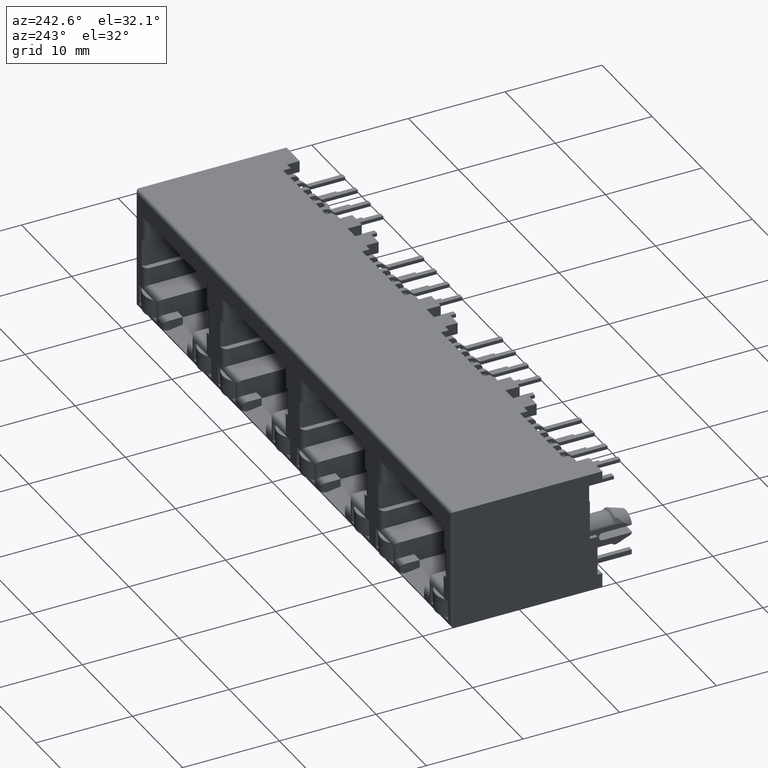
[diagram: clean part render]
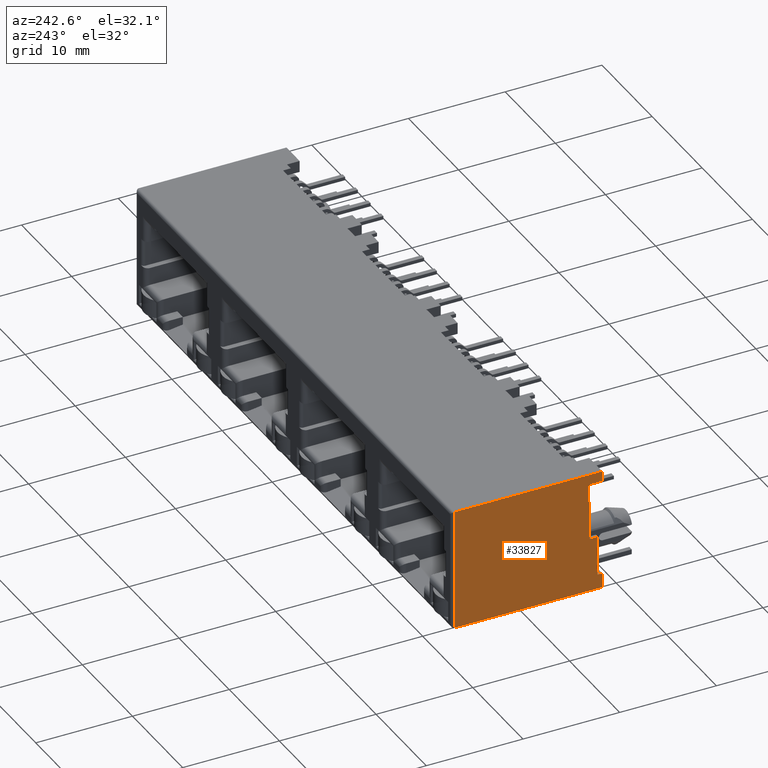
[diagram: same view with one face highlighted and labeled with its STEP entity id]
A machine part, auxiliary view. The second image highlights one B-rep face of the part: STEP entity #33827.
In plain terms, the highlighted planar face has unit normal (1, 0, 0).
Its self-contained STEP definition (entity closure, byte-faithful):
#33 = CARTESIAN_POINT ( 'NONE',  ( -31.50000000000000000, -2.700000000000001100, 6.300000000000000700 ) ) ;
#174 = CARTESIAN_POINT ( 'NONE',  ( -31.50000000000000000, -6.500000000000000900, -0.6500000000000000200 ) ) ;
#345 = CARTESIAN_POINT ( 'NONE',  ( -31.50000000000000000, -6.833333333333332100, 5.250000000000000000 ) ) ;
#797 = EDGE_CURVE ( 'NONE', #58443, #29136, #52097, .T. ) ;
#1118 = FACE_OUTER_BOUND ( 'NONE', #21489, .T. ) ;
#1771 = CARTESIAN_POINT ( 'NONE',  ( -31.50000000000000000, 7.500000000000000000, -6.250000000000000000 ) ) ;
#2914 = ORIENTED_EDGE ( 'NONE', *, *, #3310, .F. ) ;
#2993 = EDGE_CURVE ( 'NONE', #23417, #31411, #35553, .T. ) ;
#3065 = CARTESIAN_POINT ( 'NONE',  ( -31.50000000000000000, -7.800000000000000700, -4.750000000000000900 ) ) ;
#3310 = EDGE_CURVE ( 'NONE', #15365, #57287, #7318, .T. ) ;
#3698 = B_SPLINE_CURVE_WITH_KNOTS ( 'NONE', 3,
 ( #59480, #33, #48864, #10945 ),
 .UNSPECIFIED., .F., .F.,
 ( 4, 4 ),
 ( 0.0000000000000000000, 1.000000000000000000 ),
 .UNSPECIFIED. ) ;
#3701 = EDGE_CURVE ( 'NONE', #61648, #25019, #8610, .T. ) ;
#5444 = CARTESIAN_POINT ( 'NONE',  ( -31.50000000000000000, -6.349999999999997900, 3.450000000000000200 ) ) ;
#5821 = CARTESIAN_POINT ( 'NONE',  ( -31.50000000000000000, -7.299999999999999800, -3.383333333333333700 ) ) ;
#5834 = CARTESIAN_POINT ( 'NONE',  ( -31.50000000000000000, -7.800000000000000700, 5.249999999999999100 ) ) ;
#6343 = CARTESIAN_POINT ( 'NONE',  ( -31.50000000000000000, -7.300000000000000700, -4.750000000000000000 ) ) ;
#6579 = CARTESIAN_POINT ( 'NONE',  ( -31.50000000000000000, -7.466666666666667700, -4.750000000000000000 ) ) ;
#6664 = ORIENTED_EDGE ( 'NONE', *, *, #3701, .F. ) ;
#6710 = CARTESIAN_POINT ( 'NONE',  ( -31.50000000000000000, 7.500000000000000000, -6.250000000000000000 ) ) ;
#6968 = CARTESIAN_POINT ( 'NONE',  ( -31.50000000000000000, -6.500000000000000900, 0.7166666666666662300 ) ) ;
#7260 = CARTESIAN_POINT ( 'NONE',  ( -31.50000000000000000, -7.300000000000000700, -4.750000000000000000 ) ) ;
#7318 = B_SPLINE_CURVE_WITH_KNOTS ( 'NONE', 3,
 ( #46475, #18526, #24644, #7842 ),
 .UNSPECIFIED., .F., .F.,
 ( 4, 4 ),
 ( 0.0000000000000000000, 1.000000000000000000 ),
 .UNSPECIFIED. ) ;
#7842 = CARTESIAN_POINT ( 'NONE',  ( -31.50000000000000000, -7.800000000000000700, 5.249999999999999100 ) ) ;
#7888 = ORIENTED_EDGE ( 'NONE', *, *, #63779, .F. ) ;
#8610 = B_SPLINE_CURVE_WITH_KNOTS ( 'NONE', 3,
 ( #174, #33529, #65611, #39016 ),
 .UNSPECIFIED., .F., .F.,
 ( 4, 4 ),
 ( 0.0000000000000000000, 1.000000000000000000 ),
 .UNSPECIFIED. ) ;
#10196 = EDGE_CURVE ( 'NONE', #31411, #60348, #57545, .T. ) ;
#10679 = EDGE_CURVE ( 'NONE', #57287, #41306, #63169, .T. ) ;
#10816 = CARTESIAN_POINT ( 'NONE',  ( -31.50000000000000000, -6.500000000000000900, 3.450000000000000200 ) ) ;
#10899 = CARTESIAN_POINT ( 'NONE',  ( -31.50000000000000000, -6.500000000000000900, 3.450000000000000200 ) ) ;
#10945 = CARTESIAN_POINT ( 'NONE',  ( -31.50000000000000000, 7.500000000000000000, 6.299999999999999800 ) ) ;
#11655 = ORIENTED_EDGE ( 'NONE', *, *, #10196, .F. ) ;
#11728 = CARTESIAN_POINT ( 'NONE',  ( -31.50000000000000000, -6.500000000000000900, 2.083333333333333000 ) ) ;
#12059 = CARTESIAN_POINT ( 'NONE',  ( -31.50000000000000000, -7.800000000000000700, -6.250000000000000000 ) ) ;
#12462 = CARTESIAN_POINT ( 'NONE',  ( -31.50000000000000000, 2.399999999999999500, -6.250000000000000000 ) ) ;
#12713 = CARTESIAN_POINT ( 'NONE',  ( -31.50000000000000000, 7.806000000000000000, -6.501000000000000300 ) ) ;
#12876 = CARTESIAN_POINT ( 'NONE',  ( -31.50000000000000000, 7.499999999999996400, -2.066666666666667300 ) ) ;
#13076 = ORIENTED_EDGE ( 'NONE', *, *, #66063, .F. ) ;
#15365 = VERTEX_POINT ( 'NONE', #31063 ) ;
#15381 = ORIENTED_EDGE ( 'NONE', *, *, #36255, .F. ) ;
#16814 = CARTESIAN_POINT ( 'NONE',  ( -31.50000000000000000, -6.349999999999997900, 3.450000000000000200 ) ) ;
#17420 = CARTESIAN_POINT ( 'NONE',  ( -31.50000000000000000, -6.349999999999997900, 5.249999999999999100 ) ) ;
#17655 = CARTESIAN_POINT ( 'NONE',  ( -31.50000000000000000, -6.500000000000000900, -0.6500000000000000200 ) ) ;
#17813 = ORIENTED_EDGE ( 'NONE', *, *, #46612, .F. ) ;
#18526 = CARTESIAN_POINT ( 'NONE',  ( -31.50000000000000000, -7.799999999999999800, 5.949999999999997500 ) ) ;
#19265 = ORIENTED_EDGE ( 'NONE', *, *, #64412, .T. ) ;
#21489 = EDGE_LOOP ( 'NONE', ( #11655, #61180, #17813, #6664, #15381, #7888, #13076, #58623, #2914, #19265, #63811, #37462 ) ) ;
#21609 = VERTEX_POINT ( 'NONE', #37223 ) ;
#21870 = CARTESIAN_POINT ( 'NONE',  ( -31.50000000000000000, -7.300000000000000700, -4.750000000000000000 ) ) ;
#22567 = CARTESIAN_POINT ( 'NONE',  ( -31.50000000000000000, -7.300000000000000700, -0.6500000000000000200 ) ) ;
#22814 = CARTESIAN_POINT ( 'NONE',  ( -31.50000000000000000, -7.316666666666666400, 5.250000000000000000 ) ) ;
#23417 = VERTEX_POINT ( 'NONE', #7260 ) ;
#24644 = CARTESIAN_POINT ( 'NONE',  ( -31.50000000000000000, -7.799999999999999800, 5.599999999999997900 ) ) ;
#24834 = VERTEX_POINT ( 'NONE', #10816 ) ;
#25019 = VERTEX_POINT ( 'NONE', #61985 ) ;
#25809 = CARTESIAN_POINT ( 'NONE',  ( -31.50000000000000000, 7.500000000000000000, -6.250000000000000000 ) ) ;
#27801 = CARTESIAN_POINT ( 'NONE',  ( -31.50000000000000000, -7.299999999999999800, -2.016666666666667100 ) ) ;
#29136 = VERTEX_POINT ( 'NONE', #25809 ) ;
#30524 = CARTESIAN_POINT ( 'NONE',  ( -31.50000000000000000, -7.799999999999999800, -5.750000000000000000 ) ) ;
#31063 = CARTESIAN_POINT ( 'NONE',  ( -31.50000000000000000, -7.800000000000000700, 6.299999999999999800 ) ) ;
#31411 = VERTEX_POINT ( 'NONE', #3065 ) ;
#31687 = CARTESIAN_POINT ( 'NONE',  ( -31.50000000000000000, -6.450000000000000200, 3.449999999999999700 ) ) ;
#33529 = CARTESIAN_POINT ( 'NONE',  ( -31.50000000000000000, -6.766666666666667500, -0.6500000000000001300 ) ) ;
#33827 = ADVANCED_FACE ( 'NONE', ( #1118 ), #39449, .F. ) ;
#33942 = CARTESIAN_POINT ( 'NONE',  ( -31.50000000000000000, -7.800000000000000700, -6.250000000000000000 ) ) ;
#35553 = B_SPLINE_CURVE_WITH_KNOTS ( 'NONE', 3,
 ( #6343, #6579, #44733, #39255 ),
 .UNSPECIFIED., .F., .F.,
 ( 4, 4 ),
 ( 0.0000000000000000000, 1.000000000000000000 ),
 .UNSPECIFIED. ) ;
#36255 = EDGE_CURVE ( 'NONE', #24834, #61648, #66265, .T. ) ;
#36456 = CARTESIAN_POINT ( 'NONE',  ( -31.50000000000000000, -7.800000000000000700, -4.750000000000000900 ) ) ;
#37223 = CARTESIAN_POINT ( 'NONE',  ( -31.50000000000000000, -6.349999999999997900, 3.450000000000000200 ) ) ;
#37462 = ORIENTED_EDGE ( 'NONE', *, *, #59849, .F. ) ;
#37924 = B_SPLINE_CURVE_WITH_KNOTS ( 'NONE', 3,
 ( #44025, #39026, #65385, #16814 ),
 .UNSPECIFIED., .F., .F.,
 ( 4, 4 ),
 ( 0.0000000000000000000, 1.000000000000000000 ),
 .UNSPECIFIED. ) ;
#39016 = CARTESIAN_POINT ( 'NONE',  ( -31.50000000000000000, -7.300000000000000700, -0.6500000000000000200 ) ) ;
#39026 = CARTESIAN_POINT ( 'NONE',  ( -31.49999999999801400, -6.349999999998009200, 4.649999999999998600 ) ) ;
#39255 = CARTESIAN_POINT ( 'NONE',  ( -31.50000000000000000, -7.800000000000000700, -4.750000000000000900 ) ) ;
#39449 = PLANE ( 'NONE',  #59415 ) ;
#40122 = CARTESIAN_POINT ( 'NONE',  ( -31.50000000000000000, 7.500000000000000000, 6.299999999999999800 ) ) ;
#40842 = CARTESIAN_POINT ( 'NONE',  ( -31.50000000000000000, -6.500000000000000900, -0.6500000000000000200 ) ) ;
#41306 = VERTEX_POINT ( 'NONE', #60162 ) ;
#43233 = B_SPLINE_CURVE_WITH_KNOTS ( 'NONE', 3,
 ( #5444, #43353, #31687, #10899 ),
 .UNSPECIFIED., .F., .F.,
 ( 4, 4 ),
 ( 0.0000000000000000000, 1.000000000000000000 ),
 .UNSPECIFIED. ) ;
#43353 = CARTESIAN_POINT ( 'NONE',  ( -31.50000000000000000, -6.399999999999998600, 3.449999999999999700 ) ) ;
#44025 = CARTESIAN_POINT ( 'NONE',  ( -31.50000000000000000, -6.349999999999997900, 5.249999999999999100 ) ) ;
#44733 = CARTESIAN_POINT ( 'NONE',  ( -31.50000000000000000, -7.633333333333333700, -4.750000000000000000 ) ) ;
#44890 = CARTESIAN_POINT ( 'NONE',  ( -31.50000000000000000, -6.500000000000000900, 3.450000000000000200 ) ) ;
#44917 = DIRECTION ( 'NONE',  ( 0.0000000000000000000, 0.0000000000000000000, 1.000000000000000000 ) ) ;
#45572 = CARTESIAN_POINT ( 'NONE',  ( -31.50000000000000000, 7.499999999999996400, 2.116666666666666700 ) ) ;
#45875 = DIRECTION ( 'NONE',  ( 1.000000000000000000, 0.0000000000000000000, -0.0000000000000000000 ) ) ;
#46119 = B_SPLINE_CURVE_WITH_KNOTS ( 'NONE', 3,
 ( #22567, #27801, #5821, #21870 ),
 .UNSPECIFIED., .F., .F.,
 ( 4, 4 ),
 ( 0.0000000000000000000, 1.000000000000000000 ),
 .UNSPECIFIED. ) ;
#46475 = CARTESIAN_POINT ( 'NONE',  ( -31.50000000000000000, -7.800000000000000700, 6.299999999999999800 ) ) ;
#46612 = EDGE_CURVE ( 'NONE', #25019, #23417, #46119, .T. ) ;
#46901 = CARTESIAN_POINT ( 'NONE',  ( -31.50000000000000000, -7.799999999999999800, -5.250000000000000000 ) ) ;
#48864 = CARTESIAN_POINT ( 'NONE',  ( -31.50000000000000000, 2.399999999999999500, 6.300000000000000700 ) ) ;
#52097 = B_SPLINE_CURVE_WITH_KNOTS ( 'NONE', 3,
 ( #40122, #45572, #12876, #6710 ),
 .UNSPECIFIED., .F., .F.,
 ( 4, 4 ),
 ( 0.0000000000000000000, 1.000000000000000000 ),
 .UNSPECIFIED. ) ;
#53175 = CARTESIAN_POINT ( 'NONE',  ( -31.50000000000000000, 7.500000000000000000, 6.299999999999999800 ) ) ;
#53305 = CARTESIAN_POINT ( 'NONE',  ( -31.50000000000000000, -7.800000000000000700, 5.249999999999999100 ) ) ;
#57287 = VERTEX_POINT ( 'NONE', #53305 ) ;
#57545 = B_SPLINE_CURVE_WITH_KNOTS ( 'NONE', 3,
 ( #36456, #46901, #30524, #62803 ),
 .UNSPECIFIED., .F., .F.,
 ( 4, 4 ),
 ( 0.0000000000000000000, 1.000000000000000000 ),
 .UNSPECIFIED. ) ;
#58443 = VERTEX_POINT ( 'NONE', #53175 ) ;
#58623 = ORIENTED_EDGE ( 'NONE', *, *, #10679, .F. ) ;
#59415 = AXIS2_PLACEMENT_3D ( 'NONE', #12713, #45875, #44917 ) ;
#59480 = CARTESIAN_POINT ( 'NONE',  ( -31.50000000000000000, -7.800000000000000700, 6.299999999999999800 ) ) ;
#59849 = EDGE_CURVE ( 'NONE', #60348, #29136, #69462, .T. ) ;
#60162 = CARTESIAN_POINT ( 'NONE',  ( -31.50000000000000000, -6.349999999999997900, 5.249999999999999100 ) ) ;
#60348 = VERTEX_POINT ( 'NONE', #12059 ) ;
#61180 = ORIENTED_EDGE ( 'NONE', *, *, #2993, .F. ) ;
#61648 = VERTEX_POINT ( 'NONE', #40842 ) ;
#61723 = CARTESIAN_POINT ( 'NONE',  ( -31.50000000000000000, -2.700000000000001100, -6.250000000000000000 ) ) ;
#61985 = CARTESIAN_POINT ( 'NONE',  ( -31.50000000000000000, -7.300000000000000700, -0.6500000000000000200 ) ) ;
#62803 = CARTESIAN_POINT ( 'NONE',  ( -31.50000000000000000, -7.800000000000000700, -6.250000000000000000 ) ) ;
#63169 = B_SPLINE_CURVE_WITH_KNOTS ( 'NONE', 3,
 ( #5834, #22814, #345, #17420 ),
 .UNSPECIFIED., .F., .F.,
 ( 4, 4 ),
 ( 0.0000000000000000000, 1.000000000000000000 ),
 .UNSPECIFIED. ) ;
#63779 = EDGE_CURVE ( 'NONE', #21609, #24834, #43233, .T. ) ;
#63811 = ORIENTED_EDGE ( 'NONE', *, *, #797, .T. ) ;
#64412 = EDGE_CURVE ( 'NONE', #15365, #58443, #3698, .T. ) ;
#65385 = CARTESIAN_POINT ( 'NONE',  ( -31.49999999999801400, -6.349999999998009200, 4.049999999999999800 ) ) ;
#65611 = CARTESIAN_POINT ( 'NONE',  ( -31.50000000000000000, -7.033333333333334100, -0.6500000000000001300 ) ) ;
#66063 = EDGE_CURVE ( 'NONE', #41306, #21609, #37924, .T. ) ;
#66265 = B_SPLINE_CURVE_WITH_KNOTS ( 'NONE', 3,
 ( #44890, #11728, #6968, #17655 ),
 .UNSPECIFIED., .F., .F.,
 ( 4, 4 ),
 ( 0.0000000000000000000, 1.000000000000000000 ),
 .UNSPECIFIED. ) ;
#69462 = B_SPLINE_CURVE_WITH_KNOTS ( 'NONE', 3,
 ( #33942, #61723, #12462, #1771 ),
 .UNSPECIFIED., .F., .F.,
 ( 4, 4 ),
 ( 0.0000000000000000000, 1.000000000000000000 ),
 .UNSPECIFIED. ) ;